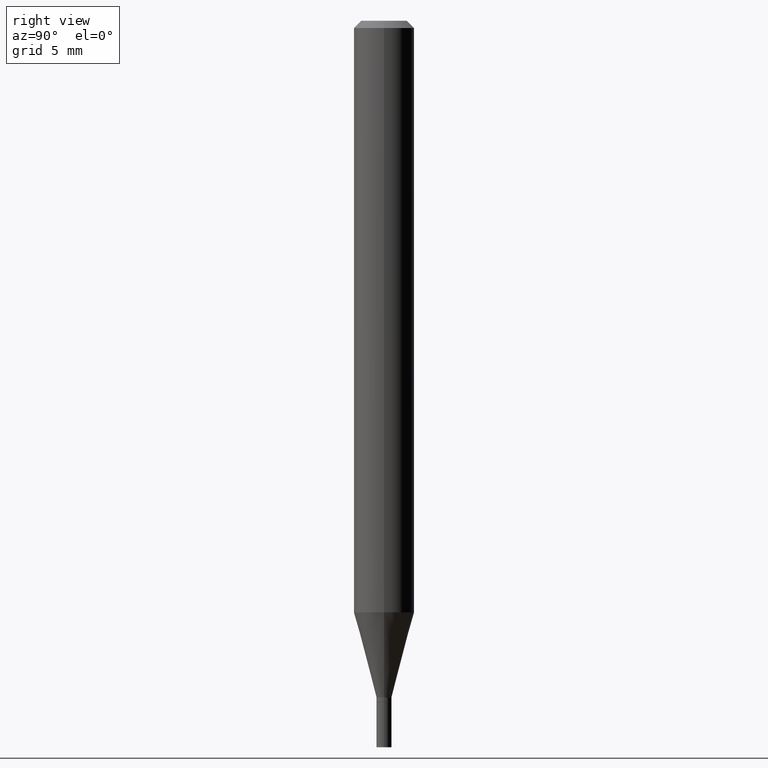
[diagram: clean part render]
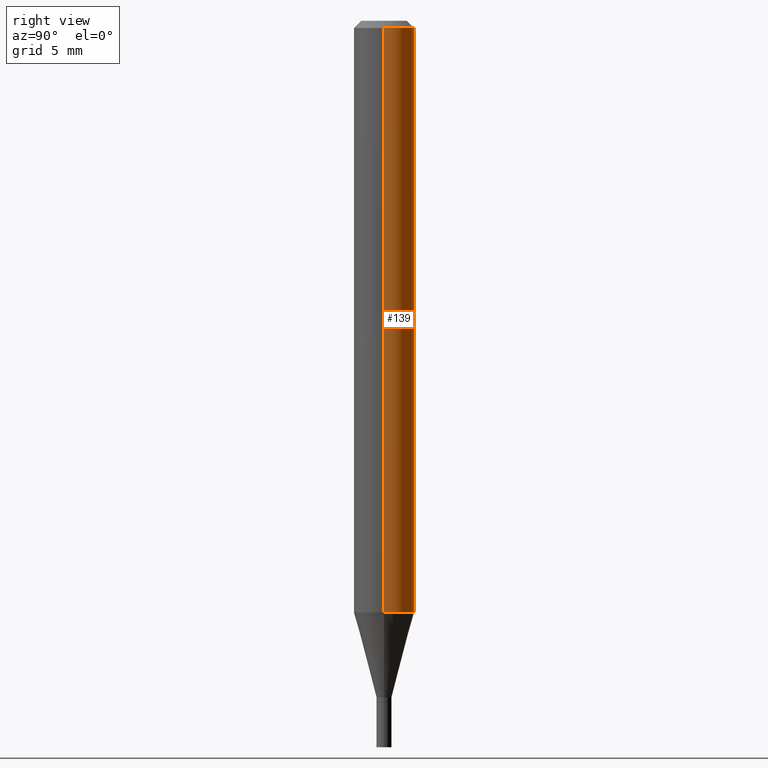
[diagram: same view with one face highlighted and labeled with its STEP entity id]
A machine part, right view. The second image highlights one B-rep face of the part: STEP entity #139.
In plain terms, the highlighted cylindrical surface (edge-blend (fillet) strip) has radius 1.5875 mm, axis along (-0, 0, 1).
Its self-contained STEP definition (entity closure, byte-faithful):
#44 = EDGE_CURVE ( 'NONE', #395, #314, #158, .T. ) ;
#50 = DIRECTION ( 'NONE',  ( -2.445468806185136597E-29, 3.491481338843145583E-15, 1.000000000000000000 ) ) ;
#64 = LINE ( 'NONE', #313, #289 ) ;
#72 = CARTESIAN_POINT ( 'NONE',  ( 0.06250000000000000000, -4.701606467457928999E-15, -1.221593612044262978 ) ) ;
#84 = ORIENTED_EDGE ( 'NONE', *, *, #184, .T. ) ;
#89 = EDGE_LOOP ( 'NONE', ( #445, #84, #190, #325 ) ) ;
#91 = DIRECTION ( 'NONE',  ( -2.445468806185136597E-29, 3.491481338843145583E-15, 1.000000000000000000 ) ) ;
#112 = CIRCLE ( 'NONE', #330, 0.06250000000000000000 ) ;
#116 = LINE ( 'NONE', #254, #423 ) ;
#129 = DIRECTION ( 'NONE',  ( -2.445468806185136877E-29, 3.491481338843145188E-15, 1.000000000000000000 ) ) ;
#130 = VERTEX_POINT ( 'NONE', #189 ) ;
#139 = ADVANCED_FACE ( 'NONE', ( #374 ), #163, .T. ) ;
#143 = EDGE_CURVE ( 'NONE', #130, #412, #112, .T. ) ;
#156 = DIRECTION ( 'NONE',  ( -2.445468806185136597E-29, 3.491481338843145583E-15, 1.000000000000000000 ) ) ;
#158 = CIRCLE ( 'NONE', #231, 0.06250000000000000000 ) ;
#161 = CARTESIAN_POINT ( 'NONE',  ( 3.668203209277705088E-31, -5.237222008264718399E-17, -0.01499999999999999944 ) ) ;
#163 = CYLINDRICAL_SURFACE ( 'NONE', #357, 0.06250000000000000000 ) ;
#184 = EDGE_CURVE ( 'NONE', #314, #412, #116, .T. ) ;
#189 = CARTESIAN_POINT ( 'NONE',  ( 0.06250000000000000000, -4.888073874380388472E-16, -0.01499999999999999944 ) ) ;
#190 = ORIENTED_EDGE ( 'NONE', *, *, #143, .F. ) ;
#200 = CARTESIAN_POINT ( 'NONE',  ( -0.06250000000000000000, -3.821082090252475502E-15, -1.221593612044262978 ) ) ;
#214 = EDGE_CURVE ( 'NONE', #395, #130, #64, .T. ) ;
#231 = AXIS2_PLACEMENT_3D ( 'NONE', #372, #50, #256 ) ;
#254 = CARTESIAN_POINT ( 'NONE',  ( -0.06250000000000000000, 4.440892098500626162E-16, -3.074334431409316114E-30 ) ) ;
#256 = DIRECTION ( 'NONE',  ( 1.000000000000000000, -6.982962677686270655E-15, 0.000000000000000000 ) ) ;
#268 = CARTESIAN_POINT ( 'NONE',  ( 0.000000000000000000, 0.000000000000000000, 0.000000000000000000 ) ) ;
#285 = CARTESIAN_POINT ( 'NONE',  ( -0.06250000000000000000, -1.714682550242529785E-15, -0.01499999999999999944 ) ) ;
#289 = VECTOR ( 'NONE', #129, 39.37007874015748143 ) ;
#296 = DIRECTION ( 'NONE',  ( 1.000000000000000000, -6.982962677686266711E-15, 4.876176775795935793E-29 ) ) ;
#313 = CARTESIAN_POINT ( 'NONE',  ( 0.06250000000000000000, -4.364351673553916694E-16, 3.047610484872459871E-30 ) ) ;
#314 = VERTEX_POINT ( 'NONE', #200 ) ;
#325 = ORIENTED_EDGE ( 'NONE', *, *, #214, .F. ) ;
#330 = AXIS2_PLACEMENT_3D ( 'NONE', #161, #91, #411 ) ;
#357 = AXIS2_PLACEMENT_3D ( 'NONE', #268, #156, #296 ) ;
#372 = CARTESIAN_POINT ( 'NONE',  ( 2.987369072089272424E-29, -4.265171300102537329E-15, -1.221593612044262978 ) ) ;
#374 = FACE_OUTER_BOUND ( 'NONE', #89, .T. ) ;
#395 = VERTEX_POINT ( 'NONE', #72 ) ;
#403 = DIRECTION ( 'NONE',  ( -2.445468806185136877E-29, 3.491481338843145188E-15, 1.000000000000000000 ) ) ;
#411 = DIRECTION ( 'NONE',  ( 1.000000000000000000, -6.982962677686266711E-15, 0.000000000000000000 ) ) ;
#412 = VERTEX_POINT ( 'NONE', #285 ) ;
#423 = VECTOR ( 'NONE', #403, 39.37007874015748143 ) ;
#445 = ORIENTED_EDGE ( 'NONE', *, *, #44, .T. ) ;